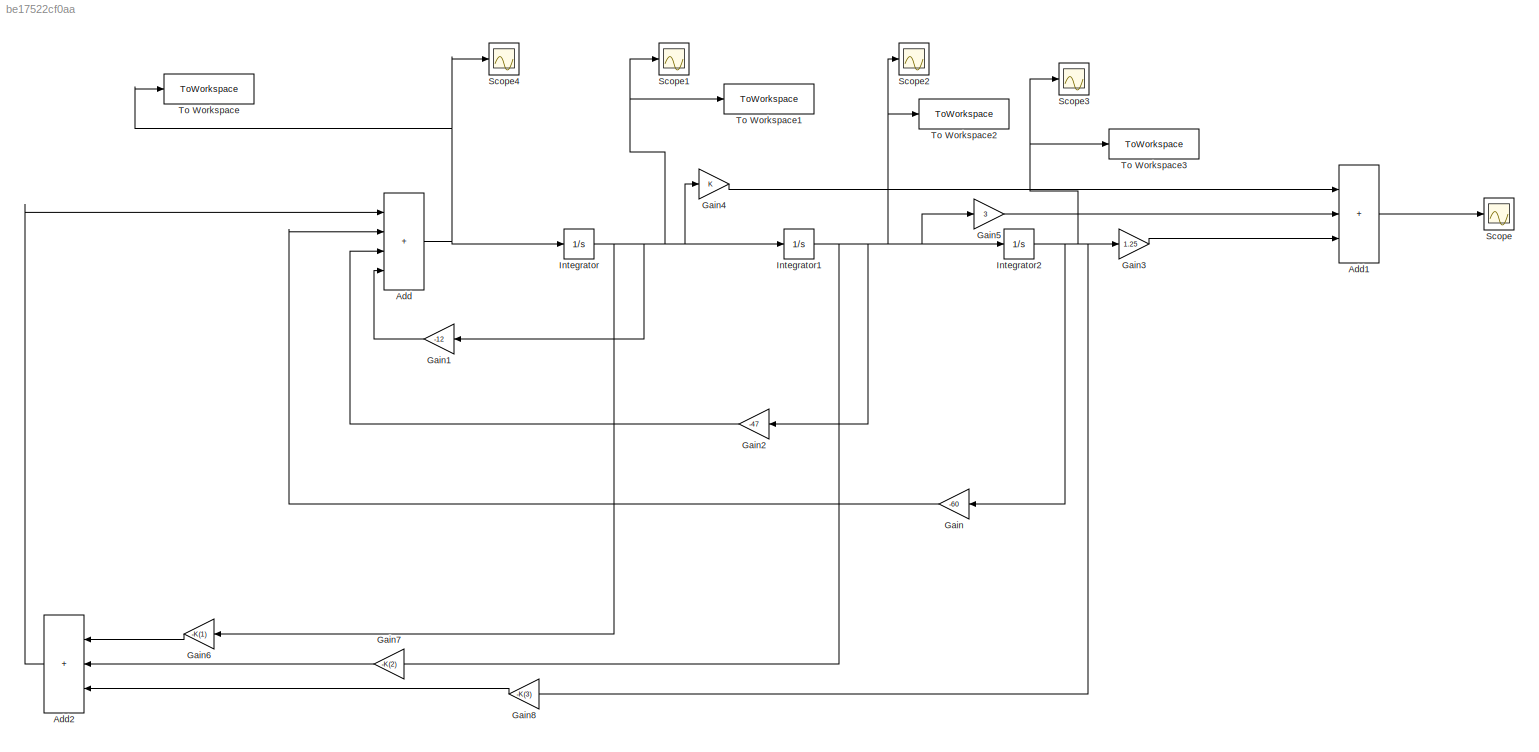
MODEL slx_be17522cf0aa
KIND model
CONFIG AbsTol = auto
CONFIG EnableMultiTasking = off
CONFIG FixedStep = auto
CONFIG MaxStep = auto
CONFIG MinStep = auto
CONFIG RelTol = 1e-3
CONFIG SampleTimeConstraint = Unconstrained
CONFIG SolverName = VariableStepAuto
CONFIG StartTime = 0.0
CONFIG StopTime = 10.0
BLOCK [Sum] Add
  IconShape = rectangular
  Inputs = ++++
BLOCK [Sum] Add1
  IconShape = rectangular
  Inputs = +++
BLOCK [Sum] Add2
  IconShape = rectangular
  Inputs = +++
  NameLocation = top
BLOCK [Gain] Gain
  Gain = -60
  NameLocation = top
BLOCK [Gain] Gain1
  Gain = -12
  NameLocation = top
BLOCK [Gain] Gain2
  Gain = -47
  NameLocation = top
BLOCK [Gain] Gain3
  Gain = 1.25
BLOCK [Gain] Gain4
BLOCK [Gain] Gain5
  Gain = 3
BLOCK [Gain] Gain6
  Gain = -K(1)
  NameLocation = top
BLOCK [Gain] Gain7
  Gain = -K(2)
  NameLocation = top
BLOCK [Gain] Gain8
  Gain = -K(3)
  NameLocation = top
BLOCK [Integrator] Integrator
  InitialCondition = 5
BLOCK [Integrator] Integrator1
  InitialCondition = 6
BLOCK [Integrator] Integrator2
  InitialCondition = 1
BLOCK [Scope] Scope
  Floating = off
  NumInputPorts = 1
  ScopeSpecificationString = Simulink.scopes.TimeScopeBlockCfg('CurrentConfiguration', extmgr.ConfigurationSet(extmgr.Configuration('Core','General UI',true),extmgr.Configuration('Core','Source UI',true),extmgr.Configuration('Sources','WiredSimulink',true),extmgr.Configuration('Visuals','Time Domain',true,'SerializedDisplays',{struct('MinYLimReal','-7.15801','MaxYLimReal','27.73978','YLabelReal','','MinYLimMag','0.00000','Max...<+1355ch>
BLOCK [Scope] Scope1
  Floating = off
  NumInputPorts = 1
  ScopeSpecificationString = Simulink.scopes.TimeScopeBlockCfg('CurrentConfiguration', extmgr.ConfigurationSet(extmgr.Configuration('Core','General UI',true),extmgr.Configuration('Core','Source UI',true),extmgr.Configuration('Sources','WiredSimulink',true,'DataLoggingVariableName','ScopeData1'),extmgr.Configuration('Visuals','Time Domain',true,'SerializedDisplays',{struct('MinYLimReal','-26.44236','MaxYLimReal','29.88248','YL...<+1396ch>
BLOCK [Scope] Scope2
  Floating = off
  NumInputPorts = 1
  ScopeSpecificationString = Simulink.scopes.TimeScopeBlockCfg('CurrentConfiguration', extmgr.ConfigurationSet(extmgr.Configuration('Core','General UI',true),extmgr.Configuration('Core','Source UI',true),extmgr.Configuration('Sources','WiredSimulink',true,'DataLoggingVariableName','ScopeData2'),extmgr.Configuration('Visuals','Time Domain',true,'SerializedDisplays',{struct('MinYLimReal','-3.1494','MaxYLimReal','7.15353','YLabe...<+1395ch>
BLOCK [Scope] Scope3
  Floating = off
  NumInputPorts = 1
  ScopeSpecificationString = Simulink.scopes.TimeScopeBlockCfg('CurrentConfiguration', extmgr.ConfigurationSet(extmgr.Configuration('Core','General UI',true),extmgr.Configuration('Core','Source UI',true),extmgr.Configuration('Sources','WiredSimulink',true,'DataLoggingVariableName','ScopeData3'),extmgr.Configuration('Visuals','Time Domain',true,'SerializedDisplays',{struct('MinYLimReal','-26.44236','MaxYLimReal','29.88248','YL...<+1396ch>
BLOCK [Scope] Scope4
  Floating = off
  NumInputPorts = 1
  ScopeSpecificationString = Simulink.scopes.TimeScopeBlockCfg('CurrentConfiguration', extmgr.ConfigurationSet(extmgr.Configuration('Core','General UI',true),extmgr.Configuration('Core','Source UI',true),extmgr.Configuration('Sources','WiredSimulink',true,'DataLoggingVariableName','ScopeData4'),extmgr.Configuration('Visuals','Time Domain',true,'SerializedDisplays',{struct('MinYLimReal','-26.44236','MaxYLimReal','29.88248','YL...<+1396ch>
BLOCK [ToWorkspace] To Workspace
  FixptAsFi = on
  MaxDataPoints = inf
  SampleTime = -1
  SaveFormat = Timeseries
  VariableName = K_u
BLOCK [ToWorkspace] To Workspace1
  FixptAsFi = on
  MaxDataPoints = inf
  SampleTime = -1
  SaveFormat = Timeseries
  VariableName = K_x1
BLOCK [ToWorkspace] To Workspace2
  FixptAsFi = on
  MaxDataPoints = inf
  SampleTime = -1
  SaveFormat = Timeseries
  VariableName = K_x2
BLOCK [ToWorkspace] To Workspace3
  FixptAsFi = on
  MaxDataPoints = inf
  SampleTime = -1
  SaveFormat = Timeseries
  VariableName = K_x3
LINE Add1:1 -> Scope:1
LINE Add2:1 -> Add:1
NET Add:1 -> Integrator:1, Scope4:1, To Workspace:1
LINE Gain1:1 -> Add:4
LINE Gain2:1 -> Add:3
LINE Gain3:1 -> Add1:3
LINE Gain4:1 -> Add1:1
LINE Gain5:1 -> Add1:2
LINE Gain6:1 -> Add2:1
LINE Gain7:1 -> Add2:2
LINE Gain8:1 -> Add2:3
LINE Gain:1 -> Add:2
NET Integrator1:1 -> Gain2:1, Gain5:1, Gain7:1, Integrator2:1, Scope2:1, To Workspace2:1
NET Integrator2:1 -> Gain3:1, Gain8:1, Gain:1, Scope3:1, To Workspace3:1
NET Integrator:1 -> Gain1:1, Gain4:1, Gain6:1, Integrator1:1, Scope1:1, To Workspace1:1
note: NET lines group one-source signal fan-out (src -> all destinations, sorted); 1:1 wires keep LINE
